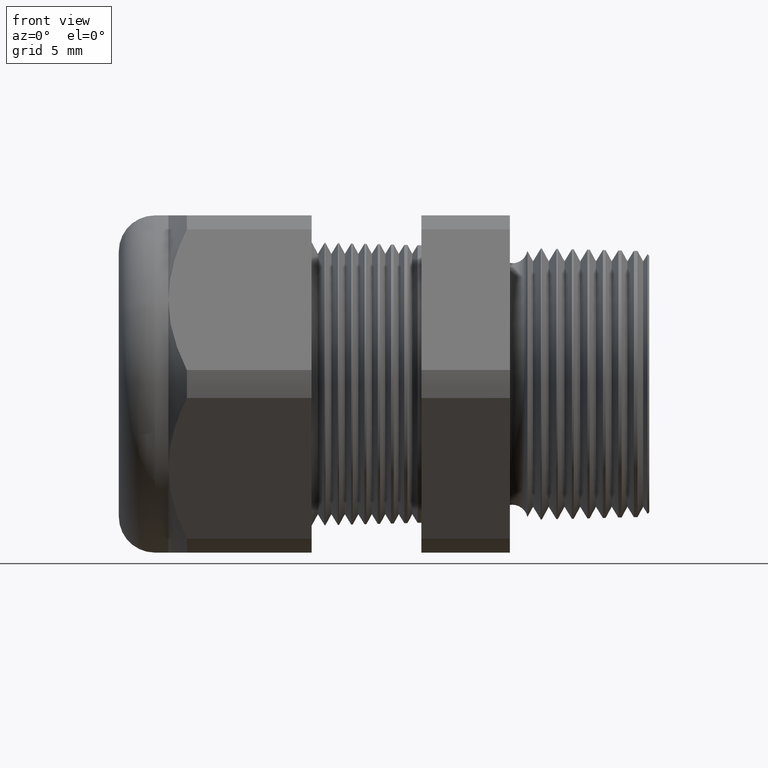
[diagram: clean part render]
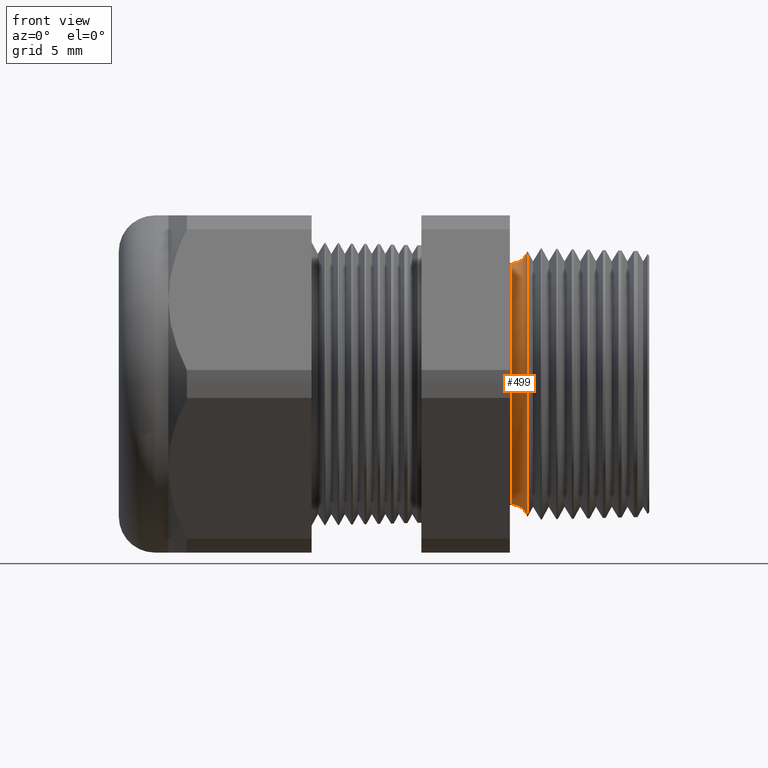
[diagram: same view with one face highlighted and labeled with its STEP entity id]
A machine part, front view. The second image highlights one B-rep face of the part: STEP entity #499.
In plain terms, the highlighted toroidal blend (fillet) surface has major radius 7.7078 mm and minor (blend) radius 0.889 mm.
Its self-contained STEP definition (entity closure, byte-faithful):
#498 = EDGE_LOOP ( 'NONE', ( #3691, #3694, #3678, #3688 ) ) ;
#499 = ADVANCED_FACE ( 'NONE', ( #2446 ), #2445, .F. ) ;
#502 = VERTEX_POINT ( 'NONE', #2435 ) ;
#505 = EDGE_CURVE ( 'NONE', #502, #506, #2428, .T. ) ;
#506 = VERTEX_POINT ( 'NONE', #2424 ) ;
#508 = VERTEX_POINT ( 'NONE', #2423 ) ;
#509 = EDGE_CURVE ( 'NONE', #510, #508, #2422, .T. ) ;
#510 = VERTEX_POINT ( 'NONE', #2417 ) ;
#2417 = CARTESIAN_POINT ( 'NONE',  ( -0.2708463023710465100, 3.622570804705299400E-017, -0.2958053544276990100 ) ) ;
#2418 = DIRECTION ( 'NONE',  ( 0.0000000000000000000, 0.0000000000000000000, -1.000000000000000000 ) ) ;
#2419 = DIRECTION ( 'NONE',  ( 0.0000000000000000000, -1.000000000000000000, 0.0000000000000000000 ) ) ;
#2420 = CARTESIAN_POINT ( 'NONE',  ( -0.3049999999999999400, 0.0000000000000000000, -0.3034555137900915000 ) ) ;
#2421 = AXIS2_PLACEMENT_3D ( 'NONE', #2420, #2419, #2418 ) ;
#2422 = CIRCLE ( 'NONE', #2421, 0.03499999999999996900 ) ;
#2423 = CARTESIAN_POINT ( 'NONE',  ( -0.3049999999999999400, 0.0000000000000000000, -0.2684555137900915300 ) ) ;
#2424 = CARTESIAN_POINT ( 'NONE',  ( -0.3049999999999999400, 3.287631856764937300E-017, 0.2684555137900915300 ) ) ;
#2425 = DIRECTION ( 'NONE',  ( 0.0000000000000000000, 1.224646799147352700E-016, 1.000000000000000000 ) ) ;
#2426 = DIRECTION ( 'NONE',  ( 0.0000000000000000000, 1.000000000000000000, -1.224646799147353200E-016 ) ) ;
#2427 = AXIS2_PLACEMENT_3D ( 'NONE', #2434, #2426, #2425 ) ;
#2428 = CIRCLE ( 'NONE', #2427, 0.03499999999999996900 ) ;
#2434 = CARTESIAN_POINT ( 'NONE',  ( -0.3049999999999999400, 3.716258236466510600E-017, 0.3034555137900915000 ) ) ;
#2435 = CARTESIAN_POINT ( 'NONE',  ( -0.2708463023710465100, 0.0000000000000000000, 0.2958053544276990100 ) ) ;
#2441 = DIRECTION ( 'NONE',  ( 0.0000000000000000000, 0.0000000000000000000, -1.000000000000000000 ) ) ;
#2442 = DIRECTION ( 'NONE',  ( 1.000000000000000000, 0.0000000000000000000, 0.0000000000000000000 ) ) ;
#2443 = CARTESIAN_POINT ( 'NONE',  ( -0.3049999999999999400, 0.0000000000000000000, 0.0000000000000000000 ) ) ;
#2444 = AXIS2_PLACEMENT_3D ( 'NONE', #2443, #2442, #2441 ) ;
#2445 = TOROIDAL_SURFACE ( 'NONE', #2444, 0.3034555137900915000, 0.03499999999999994800 ) ;
#2446 = FACE_OUTER_BOUND ( 'NONE', #498, .T. ) ;
#3678 = ORIENTED_EDGE ( 'NONE', *, *, #509, .F. ) ;
#3682 = EDGE_CURVE ( 'NONE', #502, #510, #4203, .T. ) ;
#3688 = ORIENTED_EDGE ( 'NONE', *, *, #3682, .F. ) ;
#3691 = ORIENTED_EDGE ( 'NONE', *, *, #505, .T. ) ;
#3693 = EDGE_CURVE ( 'NONE', #506, #508, #4186, .T. ) ;
#3694 = ORIENTED_EDGE ( 'NONE', *, *, #3693, .T. ) ;
#4182 = DIRECTION ( 'NONE',  ( 0.0000000000000000000, 0.0000000000000000000, -1.000000000000000000 ) ) ;
#4183 = DIRECTION ( 'NONE',  ( 1.000000000000000000, 0.0000000000000000000, 0.0000000000000000000 ) ) ;
#4184 = CARTESIAN_POINT ( 'NONE',  ( -0.3049999999999999400, 0.0000000000000000000, 0.0000000000000000000 ) ) ;
#4185 = AXIS2_PLACEMENT_3D ( 'NONE', #4184, #4183, #4182 ) ;
#4186 = CIRCLE ( 'NONE', #4185, 0.2684555137900915300 ) ;
#4199 = DIRECTION ( 'NONE',  ( 0.0000000000000000000, 0.0000000000000000000, 1.000000000000000000 ) ) ;
#4200 = DIRECTION ( 'NONE',  ( 1.000000000000000000, 0.0000000000000000000, 0.0000000000000000000 ) ) ;
#4201 = CARTESIAN_POINT ( 'NONE',  ( -0.2708463023710465100, 0.0000000000000000000, 0.0000000000000000000 ) ) ;
#4202 = AXIS2_PLACEMENT_3D ( 'NONE', #4201, #4200, #4199 ) ;
#4203 = CIRCLE ( 'NONE', #4202, 0.2958053544276990100 ) ;